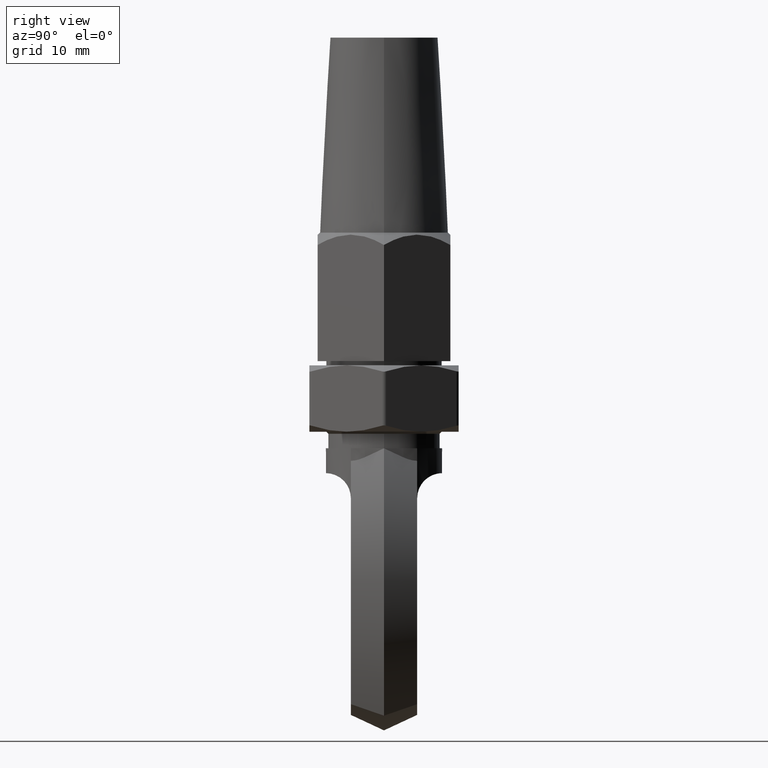
[diagram: clean part render]
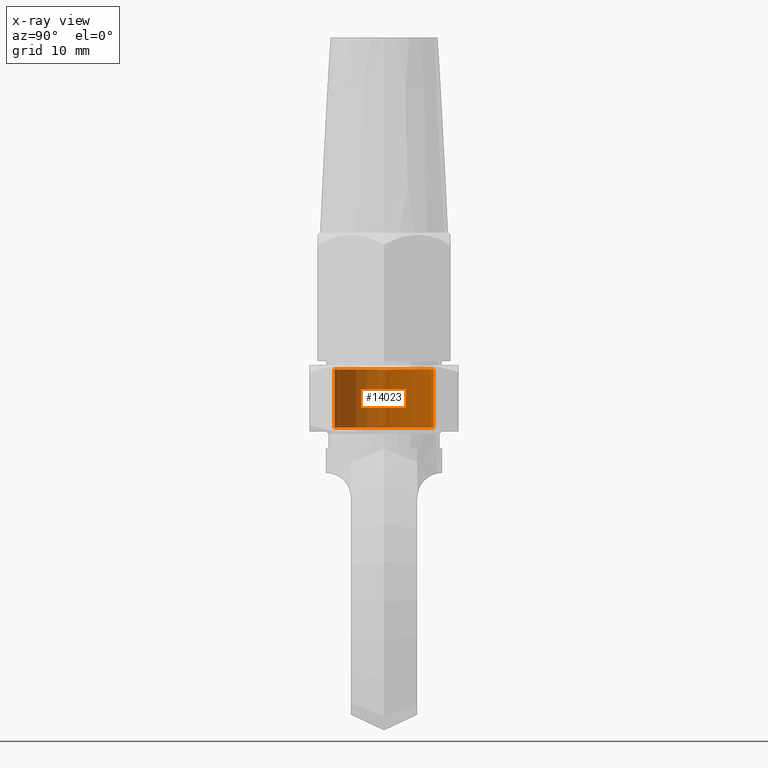
[diagram: x-ray — body ghosted, one internal face saturated and labeled with its STEP entity id]
A machine part, right view, then the same camera in x-ray: the body is ghosted and one INTERNAL B-rep face — a face not visible from any outside direction — is saturated and labeled: STEP entity #14023.
In plain terms, the highlighted cylindrical surface (partial cylindrical patch) has radius 6 mm, axis along (0, 0, 1).
Its self-contained STEP definition (entity closure, byte-faithful):
#1371 = AXIS2_PLACEMENT_3D ( 'NONE', #8474, #11460, #4003 ) ;
#1558 = EDGE_CURVE ( 'NONE', #11745, #6423, #17652, .T. ) ;
#2669 = DIRECTION ( 'NONE',  ( 0.0000000000000000000, 0.0000000000000000000, 1.000000000000000000 ) ) ;
#4003 = DIRECTION ( 'NONE',  ( 0.0000000000000000000, 0.0000000000000000000, 1.000000000000000000 ) ) ;
#4009 = AXIS2_PLACEMENT_3D ( 'NONE', #12691, #9829, #6630 ) ;
#4361 = DIRECTION ( 'NONE',  ( 0.0000000000000000000, 1.000000000000000000, 0.0000000000000000000 ) ) ;
#4365 = CIRCLE ( 'NONE', #1371, 5.999999999999998200 ) ;
#4803 = EDGE_LOOP ( 'NONE', ( #18866, #7553, #8739, #13700 ) ) ;
#5155 = VECTOR ( 'NONE', #9463, 1000.000000000000000 ) ;
#6423 = VERTEX_POINT ( 'NONE', #6733 ) ;
#6630 = DIRECTION ( 'NONE',  ( 0.0000000000000000000, 0.0000000000000000000, 1.000000000000000000 ) ) ;
#6733 = CARTESIAN_POINT ( 'NONE',  ( 0.0000000000000000000, 3.499999999999996000, 5.999999999999998200 ) ) ;
#7192 = CARTESIAN_POINT ( 'NONE',  ( 0.0000000000000000000, 3.499999999999996000, 0.0000000000000000000 ) ) ;
#7332 = VERTEX_POINT ( 'NONE', #10398 ) ;
#7553 = ORIENTED_EDGE ( 'NONE', *, *, #11914, .T. ) ;
#7872 = VERTEX_POINT ( 'NONE', #9847 ) ;
#8418 = AXIS2_PLACEMENT_3D ( 'NONE', #7192, #4361, #2669 ) ;
#8474 = CARTESIAN_POINT ( 'NONE',  ( 0.0000000000000000000, -3.499999999999996000, 0.0000000000000000000 ) ) ;
#8632 = DIRECTION ( 'NONE',  ( -0.0000000000000000000, 1.000000000000000000, -0.0000000000000000000 ) ) ;
#8739 = ORIENTED_EDGE ( 'NONE', *, *, #1558, .T. ) ;
#9463 = DIRECTION ( 'NONE',  ( -0.0000000000000000000, 1.000000000000000000, -0.0000000000000000000 ) ) ;
#9829 = DIRECTION ( 'NONE',  ( -0.0000000000000000000, 1.000000000000000000, -0.0000000000000000000 ) ) ;
#9847 = CARTESIAN_POINT ( 'NONE',  ( 7.347880794884117800E-016, -3.499999999999996000, -5.999999999999998200 ) ) ;
#10398 = CARTESIAN_POINT ( 'NONE',  ( 0.0000000000000000000, -3.499999999999996000, 5.999999999999998200 ) ) ;
#11433 = CARTESIAN_POINT ( 'NONE',  ( 7.347880794884117800E-016, 3.499999999999996000, -5.999999999999998200 ) ) ;
#11460 = DIRECTION ( 'NONE',  ( -0.0000000000000000000, -1.000000000000000000, -0.0000000000000000000 ) ) ;
#11745 = VERTEX_POINT ( 'NONE', #11433 ) ;
#11914 = EDGE_CURVE ( 'NONE', #7872, #11745, #13472, .T. ) ;
#12610 = EDGE_CURVE ( 'NONE', #7332, #7872, #4365, .T. ) ;
#12691 = CARTESIAN_POINT ( 'NONE',  ( 0.0000000000000000000, 4.000000000000000000, 0.0000000000000000000 ) ) ;
#13472 = LINE ( 'NONE', #17757, #14892 ) ;
#13700 = ORIENTED_EDGE ( 'NONE', *, *, #16154, .F. ) ;
#14023 = ADVANCED_FACE ( 'NONE', ( #16479 ), #15315, .F. ) ;
#14892 = VECTOR ( 'NONE', #8632, 1000.000000000000000 ) ;
#15315 = CYLINDRICAL_SURFACE ( 'NONE', #4009, 5.999999999999998200 ) ;
#16154 = EDGE_CURVE ( 'NONE', #7332, #6423, #16817, .T. ) ;
#16479 = FACE_OUTER_BOUND ( 'NONE', #4803, .T. ) ;
#16817 = LINE ( 'NONE', #16953, #5155 ) ;
#16953 = CARTESIAN_POINT ( 'NONE',  ( 0.0000000000000000000, 4.000000000000000000, 5.999999999999998200 ) ) ;
#17652 = CIRCLE ( 'NONE', #8418, 5.999999999999998200 ) ;
#17757 = CARTESIAN_POINT ( 'NONE',  ( 7.347880794884117800E-016, 4.000000000000000000, -5.999999999999998200 ) ) ;
#18866 = ORIENTED_EDGE ( 'NONE', *, *, #12610, .T. ) ;